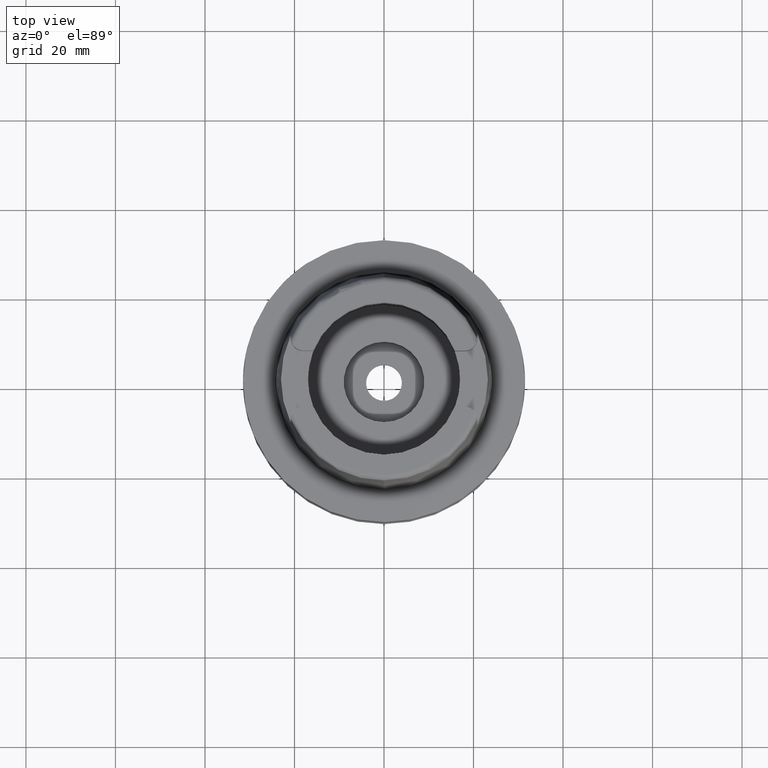
[diagram: clean part render]
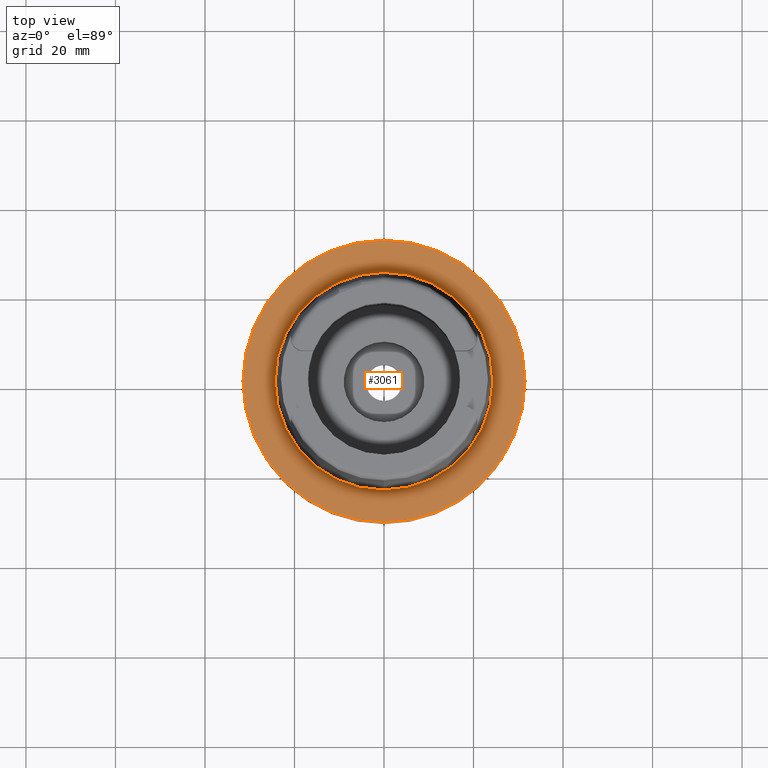
[diagram: same view with one face highlighted and labeled with its STEP entity id]
A machine part, top view. The second image highlights one B-rep face of the part: STEP entity #3061.
In plain terms, the highlighted planar face has unit normal (0, 0, 1).
Its self-contained STEP definition (entity closure, byte-faithful):
#618=CARTESIAN_POINT('',(0.E0,0.E0,-1.136868377216E-13));
#619=DIRECTION('',(0.E0,0.E0,-1.E0));
#620=DIRECTION('',(0.E0,-1.E0,0.E0));
#621=AXIS2_PLACEMENT_3D('',#618,#619,#620);
#626=CARTESIAN_POINT('',(0.E0,0.E0,-1.136868377216E-13));
#627=DIRECTION('',(0.E0,0.E0,-1.E0));
#628=DIRECTION('',(0.E0,1.E0,0.E0));
#629=AXIS2_PLACEMENT_3D('',#626,#627,#628);
#634=CARTESIAN_POINT('',(0.E0,0.E0,-1.705302565824E-12));
#635=DIRECTION('',(0.E0,0.E0,1.E0));
#636=DIRECTION('',(0.E0,-1.E0,0.E0));
#637=AXIS2_PLACEMENT_3D('',#634,#635,#636);
#642=CARTESIAN_POINT('',(0.E0,0.E0,-1.705302565824E-12));
#643=DIRECTION('',(0.E0,0.E0,1.E0));
#644=DIRECTION('',(0.E0,1.E0,0.E0));
#645=AXIS2_PLACEMENT_3D('',#642,#643,#644);
#2397=CARTESIAN_POINT('',(0.E0,-2.431503482329E1,-9.485745522397E-13));
#2398=VERTEX_POINT('',#2397);
#2399=CARTESIAN_POINT('',(0.E0,2.431503482329E1,-1.705302565824E-12));
#2400=VERTEX_POINT('',#2399);
#2675=CARTESIAN_POINT('',(0.E0,3.15E1,-8.526512829121E-14));
#2676=VERTEX_POINT('',#2675);
#2677=CARTESIAN_POINT('',(0.E0,-3.15E1,-1.136868377216E-13));
#2678=VERTEX_POINT('',#2677);
#3046=CARTESIAN_POINT('',(0.E0,0.E0,0.E0));
#3047=DIRECTION('',(0.E0,0.E0,1.E0));
#3048=DIRECTION('',(0.E0,1.E0,0.E0));
#3049=AXIS2_PLACEMENT_3D('',#3046,#3047,#3048);
#3050=PLANE('',#3049);
#3052=ORIENTED_EDGE('',*,*,#3051,.T.);
#3054=ORIENTED_EDGE('',*,*,#3053,.T.);
#3055=EDGE_LOOP('',(#3052,#3054));
#3056=FACE_OUTER_BOUND('',#3055,.F.);
#3057=ORIENTED_EDGE('',*,*,#3004,.T.);
#3058=ORIENTED_EDGE('',*,*,#2797,.T.);
#3059=EDGE_LOOP('',(#3057,#3058));
#3060=FACE_BOUND('',#3059,.F.);
#622=CIRCLE('',#621,3.15E1);
#630=CIRCLE('',#629,3.15E1);
#638=CIRCLE('',#637,2.431503482329E1);
#646=CIRCLE('',#645,2.431503482329E1);
#2797=EDGE_CURVE('',#2400,#2398,#646,.T.);
#3004=EDGE_CURVE('',#2398,#2400,#638,.T.);
#3051=EDGE_CURVE('',#2678,#2676,#622,.T.);
#3053=EDGE_CURVE('',#2676,#2678,#630,.T.);
#3061=ADVANCED_FACE('',(#3056,#3060),#3050,.T.);